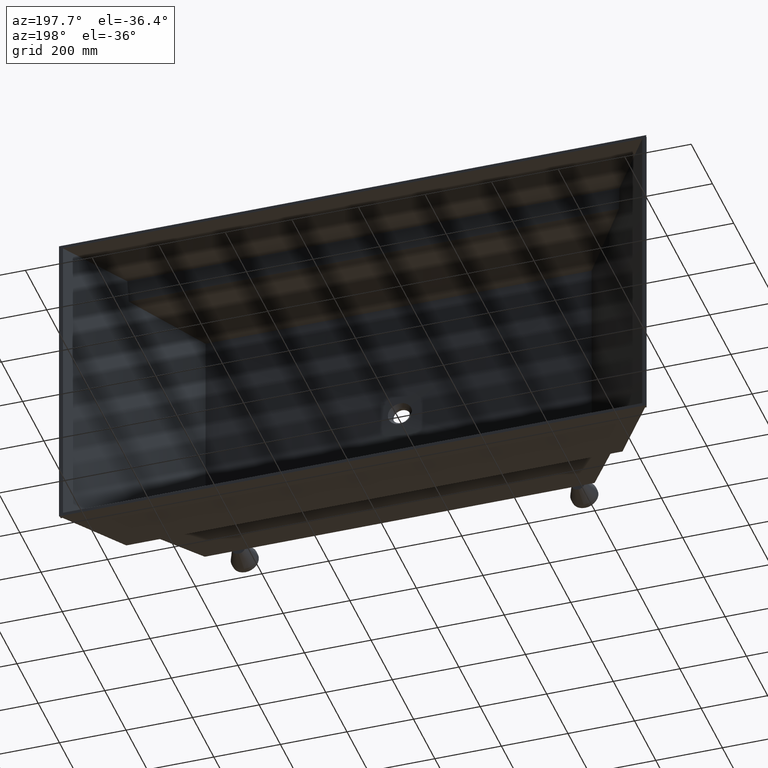
[diagram: clean part render]
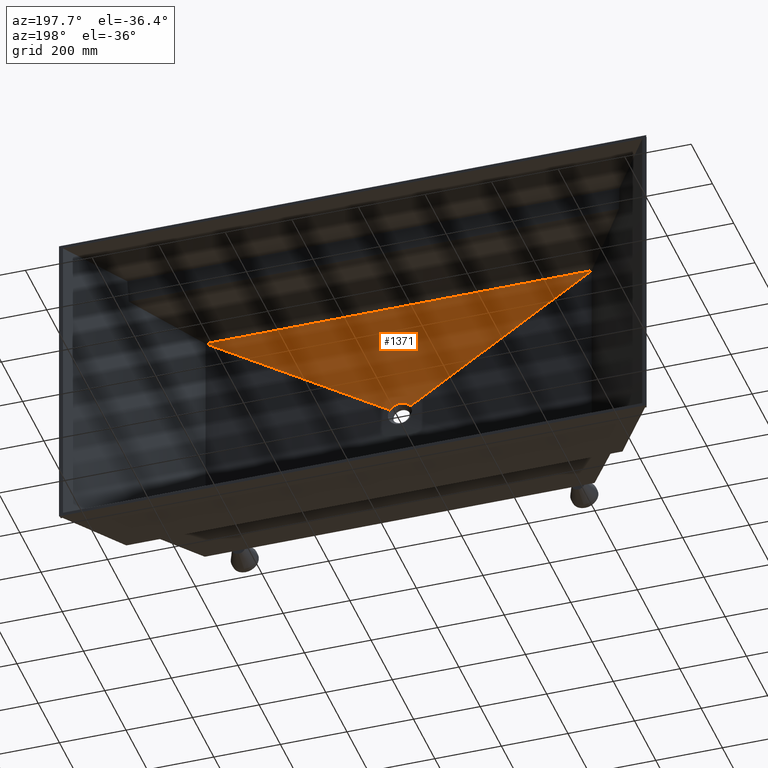
[diagram: same view with one face highlighted and labeled with its STEP entity id]
A machine part, auxiliary view. The second image highlights one B-rep face of the part: STEP entity #1371.
In plain terms, the highlighted face is a freeform B-spline surface patch.
Its self-contained STEP definition (entity closure, byte-faithful):
#33 = CARTESIAN_POINT ( 'NONE',  ( 6.652817067481202600, -444.6568898368007600, 35.51453088002421100 ) ) ;
#57 = CARTESIAN_POINT ( 'NONE',  ( 3.368652103122633500, -444.6499860862061800, 35.96865682231603500 ) ) ;
#90 = CARTESIAN_POINT ( 'NONE',  ( 1.707616907462160300, -444.6481687214573500, 36.08514314667780100 ) ) ;
#97 = CARTESIAN_POINT ( 'NONE',  ( 265.8333333333355300, -433.0000000000000600, 370.0000000000000000 ) ) ;
#169 = CARTESIAN_POINT ( 'NONE',  ( -498.0116696060077300, -432.6200604881802300, 381.1749425878642800 ) ) ;
#391 = CARTESIAN_POINT ( 'NONE',  ( 273.8603820835084500, -432.6200604881802900, 380.9888227316643000 ) ) ;
#445 = CARTESIAN_POINT ( 'NONE',  ( 8.276588221777309700, -444.6619689883626700, 35.17642082674614600 ) ) ;
#655 = CARTESIAN_POINT ( 'NONE',  ( -1.654412596268778600, -444.6481308521453600, 36.08759160419334200 ) ) ;
#660 = ORIENTED_EDGE ( 'NONE', *, *, #1390, .F. ) ;
#688 = CARTESIAN_POINT ( 'NONE',  ( -3.325003359853514300, -444.6499146266757000, 35.97330071050035400 ) ) ;
#764 = VECTOR ( 'NONE', #7022, 1000.000000000000100 ) ;
#774 = CARTESIAN_POINT ( 'NONE',  ( -5.398857553334576000, -444.6542489656664000, 35.68826071146957400 ) ) ;
#932 = CARTESIAN_POINT ( 'NONE',  ( 2.375571256383533800, -445.0000000000000000, 25.91822523027963100 ) ) ;
#938 = CARTESIAN_POINT ( 'NONE',  ( 120.8333333333361000, -433.0000000000000600, 370.0000000000000000 ) ) ;
#964 = CARTESIAN_POINT ( 'NONE',  ( 15.15837181452482000, -444.9999999999998900, 21.23925852102978600 ) ) ;
#1142 = CARTESIAN_POINT ( 'NONE',  ( 48.33333333333631300, -433.0000000000000000, 369.9999999999998900 ) ) ;
#1162 = CARTESIAN_POINT ( 'NONE',  ( 96.66666666666945700, -433.0000000000000600, 369.9999999999999400 ) ) ;
#1167 = CARTESIAN_POINT ( 'NONE',  ( 4.717986647780336700, -444.9999999999999400, 25.59567033451215300 ) ) ;
#1175 = CARTESIAN_POINT ( 'NONE',  ( 99.57791138324010700, -432.6200604881802900, 380.9044010734763200 ) ) ;
#1194 = EDGE_CURVE ( 'NONE', #8579, #8788, #6990, .T. ) ;
#1228 = CARTESIAN_POINT ( 'NONE',  ( 5.872548449445437400, -445.0000000000000600, 25.35493094219854300 ) ) ;
#1282 = CARTESIAN_POINT ( 'NONE',  ( -5.813082838003135000, -444.6552212375276000, 35.62399473677999900 ) ) ;
#1314 = CARTESIAN_POINT ( 'NONE',  ( -6.639840274992491400, -444.6573672547996200, 35.48118967822043900 ) ) ;
#1340 = CARTESIAN_POINT ( 'NONE',  ( -7.053010870240109800, -444.6585438190140300, 35.40246572580653600 ) ) ;
#1371 = ADVANCED_FACE ( 'NONE', ( #5836 ), #2443, .F. ) ;
#1390 = EDGE_CURVE ( 'NONE', #8579, #4532, #5361, .T. ) ;
#1441 = CARTESIAN_POINT ( 'NONE',  ( -199.1629904741964500, -432.6200604881802300, 380.9441272846977400 ) ) ;
#1444 = CARTESIAN_POINT ( 'NONE',  ( -8.283612428907750000, -444.6623489436677800, 35.14594405809139500 ) ) ;
#1453 = CARTESIAN_POINT ( 'NONE',  ( -8.118383112205009400, -445.0000000000000600, 24.72753938462551900 ) ) ;
#1460 = CARTESIAN_POINT ( 'NONE',  ( -169.1666666666638400, -433.0000000000000000, 369.9999999999998900 ) ) ;
#1470 = CARTESIAN_POINT ( 'NONE',  ( -174.2657171860881200, -432.6200604881802300, 380.9318875109175300 ) ) ;
#1482 = CARTESIAN_POINT ( 'NONE',  ( -5.872548449445443600, -445.0000000000000600, 25.35493094219854600 ) ) ;
#1491 = CARTESIAN_POINT ( 'NONE',  ( -120.8333333333304600, -432.9999999999999400, 369.9999999999998900 ) ) ;
#1494 = CARTESIAN_POINT ( 'NONE',  ( 386.6666666666681600, -433.0000000000000600, 370.0000000000000000 ) ) ;
#1504 = CARTESIAN_POINT ( 'NONE',  ( -587.7333333333333500, -433.0000000000000000, 369.9999999999997200 ) ) ;
#1520 = CARTESIAN_POINT ( 'NONE',  ( -22.07680635148490100, -445.0000000000000000, 13.73681324721162200 ) ) ;
#1523 = CARTESIAN_POINT ( 'NONE',  ( -21.99821490138278400, -445.0000000000000000, 13.86001065547981000 ) ) ;
#1529 = CARTESIAN_POINT ( 'NONE',  ( -605.6429387265953900, -432.6200604881802300, 381.2798717711834800 ) ) ;
#1539 = CARTESIAN_POINT ( 'NONE',  ( -601.6563354392187600, -432.6200604881802300, 381.2759711409206000 ) ) ;
#1548 = CARTESIAN_POINT ( 'NONE',  ( -583.8666666666666700, -433.0000000000000000, 369.9999999999997200 ) ) ;
#1563 = CARTESIAN_POINT ( 'NONE',  ( -21.91962345128066000, -445.0000000000000000, 13.98320806374799800 ) ) ;
#1575 = CARTESIAN_POINT ( 'NONE',  ( -597.6697321518422500, -432.6200604881802300, 381.2720705106577300 ) ) ;
#1581 = CARTESIAN_POINT ( 'NONE',  ( 174.2657171860937500, -432.6200604881802900, 380.9318875109176500 ) ) ;
#1590 = CARTESIAN_POINT ( 'NONE',  ( -580.0000000000000000, -433.0000000000000000, 369.9999999999997200 ) ) ;
#1604 = CARTESIAN_POINT ( 'NONE',  ( -4.717986647780338500, -444.9999999999999400, 25.59567033451215000 ) ) ;
#1612 = CARTESIAN_POINT ( 'NONE',  ( -124.4731787072637700, -432.6200604881801700, 380.9120232740755800 ) ) ;
#1615 = CARTESIAN_POINT ( 'NONE',  ( -96.66666666666378700, -432.9999999999999400, 369.9999999999998900 ) ) ;
#1641 = CARTESIAN_POINT ( 'NONE',  ( -2.375571256383537800, -445.0000000000000600, 25.91822523027962400 ) ) ;
#1648 = CARTESIAN_POINT ( 'NONE',  ( -99.57791138323426600, -432.6200604881801700, 380.9044010734762700 ) ) ;
#1651 = CARTESIAN_POINT ( 'NONE',  ( -49.78843080731729700, -432.6200604881801700, 380.8941884610068800 ) ) ;
#1660 = CARTESIAN_POINT ( 'NONE',  ( -48.33333333333031600, -432.9999999999999400, 369.9999999999998900 ) ) ;
#1681 = CARTESIAN_POINT ( 'NONE',  ( -1.187811578351947400, -445.0000000000001100, 25.99999999999999600 ) ) ;
#1693 = CARTESIAN_POINT ( 'NONE',  ( -24.16666666666351300, -433.0000000000000000, 369.9999999999998900 ) ) ;
#1710 = CARTESIAN_POINT ( 'NONE',  ( 11.30402670395046800, -445.0000000000000000, 23.44179540208820000 ) ) ;
#1720 = CARTESIAN_POINT ( 'NONE',  ( -24.89421458203268500, -432.6200604881802300, 380.8915993388329800 ) ) ;
#1747 = CARTESIAN_POINT ( 'NONE',  ( -193.3333333333306100, -433.0000000000000000, 369.9999999999998900 ) ) ;
#1881 = CARTESIAN_POINT ( 'NONE',  ( 870.0010999999998400, -432.9999999999999400, 369.9999999999999400 ) ) ;
#1889 = CARTESIAN_POINT ( 'NONE',  ( -22.15539780158701800, -445.0000000000000000, 13.61361583894343300 ) ) ;
#1925 = CARTESIAN_POINT ( 'NONE',  ( 8.118383112205005900, -445.0000000000000000, 24.72753938462551900 ) ) ;
#1932 = CARTESIAN_POINT ( 'NONE',  ( -591.6000000000000200, -433.0000000000000000, 369.9999999999997200 ) ) ;
#1958 = DIRECTION ( 'NONE',  ( -1.000000000000000000, 0.0000000000000000000, 0.0000000000000000000 ) ) ;
#1966 = CARTESIAN_POINT ( 'NONE',  ( 19.73312911012732200, -445.0000000000001100, 17.05089393811174500 ) ) ;
#1978 = CARTESIAN_POINT ( 'NONE',  ( -9.093395099397461900, -444.6652538559905000, 34.94779097156347100 ) ) ;
#1984 = CARTESIAN_POINT ( 'NONE',  ( 124.4731787072695700, -432.6200604881802900, 380.9120232740756900 ) ) ;
#1990 = CARTESIAN_POINT ( 'NONE',  ( 9.209588594781987300, -445.0000000000000600, 24.34095867692663600 ) ) ;
#2008 = CARTESIAN_POINT ( 'NONE',  ( 338.3333333333351300, -433.0000000000000600, 370.0000000000000000 ) ) ;
#2010 = CARTESIAN_POINT ( 'NONE',  ( -10.69324398437525800, -444.6717078446215500, 34.49820510063957400 ) ) ;
#2018 = CARTESIAN_POINT ( 'NONE',  ( 348.5655780926539900, -432.6200604881802900, 381.0423321549514000 ) ) ;
#2025 = CARTESIAN_POINT ( 'NONE',  ( 20.93723032500416200, -445.0000000000001100, 15.52317566710035900 ) ) ;
#2035 = CARTESIAN_POINT ( 'NONE',  ( 398.3758410502265400, -432.6200604881802900, 381.0844285334237600 ) ) ;
#2039 = CARTESIAN_POINT ( 'NONE',  ( -11.48313550750926400, -444.6752531822105000, 34.24682562755051400 ) ) ;
#2047 = CARTESIAN_POINT ( 'NONE',  ( -20.93723032500416500, -445.0000000000000600, 15.52317566710035200 ) ) ;
#2071 = CARTESIAN_POINT ( 'NONE',  ( -13.04318386769622200, -444.6828882398942800, 33.69135264020132300 ) ) ;
#2077 = CARTESIAN_POINT ( 'NONE',  ( 49.78843080732348600, -432.6200604881802300, 380.8941884610068800 ) ) ;
#2096 = CARTESIAN_POINT ( 'NONE',  ( 21.91962345128065300, -445.0000000000000000, 13.98320806374800700 ) ) ;
#2099 = CARTESIAN_POINT ( 'NONE',  ( -13.81331519681116800, -444.6869786606470100, 33.38726768569674200 ) ) ;
#2106 = CARTESIAN_POINT ( 'NONE',  ( 547.8371910596362100, -432.6200604881802900, 381.2233126323716900 ) ) ;
#2109 = CARTESIAN_POINT ( 'NONE',  ( 579.9999999999997700, -433.0000000000000000, 370.0000000000000000 ) ) ;
#2128 = CARTESIAN_POINT ( 'NONE',  ( -15.33372168753068700, -444.6956060908254900, 32.72614917613839900 ) ) ;
#2145 = CARTESIAN_POINT ( 'NONE',  ( 597.6697321518420300, -432.6200604881802300, 381.2720705106580100 ) ) ;
#2174 = CARTESIAN_POINT ( 'NONE',  ( 21.99821490138277400, -445.0000000000000000, 13.86001065547981900 ) ) ;
#2194 = CARTESIAN_POINT ( 'NONE',  ( 583.8666666666663300, -433.0000000000000000, 370.0000000000000000 ) ) ;
#2202 = CARTESIAN_POINT ( 'NONE',  ( 483.3333333333341100, -433.0000000000000600, 370.0000000000000000 ) ) ;
#2267 = CARTESIAN_POINT ( 'NONE',  ( 169.1666666666693000, -433.0000000000000600, 370.0000000000000000 ) ) ;
#2443 = B_SPLINE_SURFACE_WITH_KNOTS ( 'NONE', 3, 1, ( 
 ( #2528, #2504, #4370 ),
 ( #5883, #6212, #5882 ),
 ( #3014, #2194, #2174 ),
 ( #2145, #2109, #2096 ),
 ( #2106, #2607, #2025 ),
 ( #2973, #2202, #1966 ),
 ( #2035, #1494, #2927 ),
 ( #2018, #2008, #964 ),
 ( #391, #97, #4837 ),
 ( #4515, #4504, #1710 ),
 ( #4588, #4499, #1990 ),
 ( #1581, #2267, #1925 ),
 ( #1984, #938, #1228 ),
 ( #1175, #1162, #1167 ),
 ( #2077, #1142, #932 ),
 ( #4834, #4482, #4497 ),
 ( #1720, #1693, #1681 ),
 ( #1651, #1660, #1641 ),
 ( #1648, #1615, #1604 ),
 ( #1612, #1491, #1482 ),
 ( #1470, #1460, #1453 ),
 ( #1441, #1747, #4474 ),
 ( #4194, #4844, #4529 ),
 ( #4566, #6685, #7133 ),
 ( #7135, #7717, #7716 ),
 ( #4558, #5024, #6896 ),
 ( #169, #7098, #7617 ),
 ( #6732, #7533, #2047 ),
 ( #1575, #1590, #1563 ),
 ( #1539, #1548, #1523 ),
 ( #1529, #1504, #1520 ),
 ( #2944, #1932, #1889 ) ),
 .UNSPECIFIED., .F., .F., .F.,
 ( 4, 3, 2, 2, 2, 2, 2, 2, 2, 2, 2, 2, 2, 3, 4 ),
 ( 2, 1, 2 ),
 ( -0.01000000000000000000, 0.0000000000000000000, 0.1250000000000001400, 0.2500000000000002800, 0.3125000000000002800, 0.3750000000000002800, 0.4375000000000003300, 0.5000000000000000000, 0.5625000000000003300, 0.6250000000000002200, 0.6875000000000002200, 0.7500000000000001100, 0.8750000000000001100, 1.000000000000000000, 1.010000000000000000 ),
 ( -0.03166162598497989500, 0.0000000000000000000, 1.000000000000000000 ),
 .UNSPECIFIED. ) ;
#2504 = CARTESIAN_POINT ( 'NONE',  ( 591.5999999999994500, -433.0000000000000000, 370.0000000000000000 ) ) ;
#2528 = CARTESIAN_POINT ( 'NONE',  ( 609.6295420139713300, -432.6200604881802300, 381.2837724014467500 ) ) ;
#2607 = CARTESIAN_POINT ( 'NONE',  ( 531.6666666666669700, -433.0000000000000600, 370.0000000000000000 ) ) ;
#2629 = ORIENTED_EDGE ( 'NONE', *, *, #4174, .F. ) ;
#2711 = CARTESIAN_POINT ( 'NONE',  ( -16.08446976648793800, -444.7001437619654200, 32.36882557164849300 ) ) ;
#2792 = CARTESIAN_POINT ( 'NONE',  ( -17.56395504457970700, -444.7095537184847600, 31.60132167888241000 ) ) ;
#2927 = CARTESIAN_POINT ( 'NONE',  ( 16.84439698559920700, -445.0000000000001700, 19.90968756051249900 ) ) ;
#2944 = CARTESIAN_POINT ( 'NONE',  ( -609.6295420139719000, -432.6200604881802300, 381.2837724014464100 ) ) ;
#2973 = CARTESIAN_POINT ( 'NONE',  ( 498.0116696060095500, -432.6200604881802900, 381.1749425878645100 ) ) ;
#3014 = CARTESIAN_POINT ( 'NONE',  ( 601.6563354392185400, -432.6200604881802300, 381.2759711409209400 ) ) ;
#3334 = CARTESIAN_POINT ( 'NONE',  ( -18.29724196709460300, -444.7144589694116200, 31.18827790345513800 ) ) ;
#3362 = CARTESIAN_POINT ( 'NONE',  ( -19.72472713761857900, -444.7243956913786700, 30.31768815167062300 ) ) ;
#3399 = CARTESIAN_POINT ( 'NONE',  ( -20.41960482034243900, -444.7294250647774400, 29.86026038908032400 ) ) ;
#3835 = CARTESIAN_POINT ( 'NONE',  ( -580.0000000000000000, -432.9999999999999400, 369.9999999999997200 ) ) ;
#3941 = B_SPLINE_CURVE_WITH_KNOTS ( 'NONE', 3,
 ( #8322, #6861, #6746, #6200, #6138, #5455, #4721, #4697, #4670, #4114, #4076, #4048, #4023, #3989, #3954, #3399, #3362, #3334, #2792, #2711, #2128, #2099, #2071, #2039, #2010, #1978, #1444, #1340, #1314, #1282, #774, #688, #655, #90, #57, #33, #445, #4294, #9019, #8997, #8970, #8942, #8912, #8877, #8780, #8739, #8722, #8647, #8622, #8588, #8556, #8527, #8498, #8461, #8439, #8408, #8380, #8350, #8315, #8289, #8255, #8153, #8052, #8024 ),
 .UNSPECIFIED., .F., .F.,
 ( 4, 2, 2, 2, 2, 2, 2, 2, 2, 2, 2, 2, 2, 2, 2, 2, 2, 2, 2, 2, 2, 2, 2, 2, 2, 2, 2, 2, 2, 2, 2, 4 ),
 ( 0.0000000000000000000, 0.0008316591266720315900, 0.01804421162017105100, 0.05246931660716908800, 0.08689442159416731200, 0.1213195265811655400, 0.1557446315681635700, 0.1901697365551616200, 0.2245948415421596700, 0.2590199465291577200, 0.2934450515161557400, 0.3278701565031537600, 0.3622952614901517900, 0.3967203664771498700, 0.4139329189706488800, 0.4311454714641478900, 0.4999956814381439400, 0.5688458914121400400, 0.6376961013861360800, 0.6721212063731341100, 0.7065463113601322400, 0.7409714163471302600, 0.7753965213341286200, 0.8098216263211270900, 0.8270341788146260400, 0.8442467313081251100, 0.8786718362951231300, 0.9130969412821211600, 0.9475220462691191800, 0.9819471512561172000, 0.9991597037496162700, 1.000000000000000000 ),
 .UNSPECIFIED. ) ;
#3954 = CARTESIAN_POINT ( 'NONE',  ( -21.77324539386367200, -444.7395214900523100, 28.90131402588051700 ) ) ;
#3989 = CARTESIAN_POINT ( 'NONE',  ( -22.43187815188106900, -444.7445888167544600, 28.39991419490017300 ) ) ;
#4023 = CARTESIAN_POINT ( 'NONE',  ( -23.71308704945845500, -444.7546880085642400, 27.35350970714823800 ) ) ;
#4048 = CARTESIAN_POINT ( 'NONE',  ( -24.33565844476134600, -444.7597198405259700, 26.80850879946991600 ) ) ;
#4076 = CARTESIAN_POINT ( 'NONE',  ( -25.54451683594855600, -444.7696856959200300, 25.67454727933262900 ) ) ;
#4114 = CARTESIAN_POINT ( 'NONE',  ( -26.13107177885844800, -444.7746190377669100, 25.08523383882915800 ) ) ;
#4174 = EDGE_CURVE ( 'NONE', #4532, #4985, #6172, .T. ) ;
#4194 = CARTESIAN_POINT ( 'NONE',  ( -248.9603224140761300, -432.6200604881802300, 380.9725962560050300 ) ) ;
#4294 = CARTESIAN_POINT ( 'NONE',  ( 10.68158640143748400, -444.6716557571069200, 34.50193063272701000 ) ) ;
#4370 = CARTESIAN_POINT ( 'NONE',  ( 22.15539780158700700, -445.0000000000000000, 13.61361583894344200 ) ) ;
#4474 = CARTESIAN_POINT ( 'NONE',  ( -9.209588594781990900, -445.0000000000000000, 24.34095867692664300 ) ) ;
#4482 = CARTESIAN_POINT ( 'NONE',  ( 24.16666666666980100, -433.0000000000000000, 369.9999999999998900 ) ) ;
#4497 = CARTESIAN_POINT ( 'NONE',  ( 1.187811578351943600, -445.0000000000000600, 26.00000000000000400 ) ) ;
#4499 = CARTESIAN_POINT ( 'NONE',  ( 193.3333333333358700, -433.0000000000000600, 370.0000000000000000 ) ) ;
#4504 = CARTESIAN_POINT ( 'NONE',  ( 241.6666666666689900, -433.0000000000000600, 370.0000000000000000 ) ) ;
#4515 = CARTESIAN_POINT ( 'NONE',  ( 248.9603224140811600, -432.6200604881802900, 380.9725962560052000 ) ) ;
#4529 = CARTESIAN_POINT ( 'NONE',  ( -11.30402670395047300, -445.0000000000000600, 23.44179540208818600 ) ) ;
#4532 = VERTEX_POINT ( 'NONE', #3835 ) ;
#4558 = CARTESIAN_POINT ( 'NONE',  ( -398.3758410502231900, -432.6200604881802300, 381.0844285334235300 ) ) ;
#4566 = CARTESIAN_POINT ( 'NONE',  ( -273.8603820835035700, -432.6200604881802300, 380.9888227316641900 ) ) ;
#4588 = CARTESIAN_POINT ( 'NONE',  ( 199.1629904742018800, -432.6200604881802900, 380.9441272846978600 ) ) ;
#4670 = CARTESIAN_POINT ( 'NONE',  ( -27.26608572528645900, -444.7843303746846600, 23.86307807630943500 ) ) ;
#4697 = CARTESIAN_POINT ( 'NONE',  ( -27.81749891613998600, -444.7891361485525300, 23.22630334450130400 ) ) ;
#4721 = CARTESIAN_POINT ( 'NONE',  ( -28.86583292881406100, -444.7984280615963300, 21.92678747920218600 ) ) ;
#4834 = CARTESIAN_POINT ( 'NONE',  ( 24.89421458203917600, -432.6200604881802300, 380.8915993388329800 ) ) ;
#4837 = CARTESIAN_POINT ( 'NONE',  ( 12.30722718891641200, -444.9999999999999400, 22.92929880236258100 ) ) ;
#4844 = CARTESIAN_POINT ( 'NONE',  ( -241.6666666666641000, -433.0000000000000000, 369.9999999999998300 ) ) ;
#4985 = VERTEX_POINT ( 'NONE', #8808 ) ;
#5024 = CARTESIAN_POINT ( 'NONE',  ( -386.6666666666648700, -433.0000000000000000, 369.9999999999997700 ) ) ;
#5361 = LINE ( 'NONE', #1881, #5926 ) ;
#5455 = CARTESIAN_POINT ( 'NONE',  ( -29.36563383506490900, -444.8029268777166900, 21.26125236666512200 ) ) ;
#5627 = CARTESIAN_POINT ( 'NONE',  ( 300.9598117256401800, -439.0000000000000000, 191.9916040318740300 ) ) ;
#5836 = FACE_OUTER_BOUND ( 'NONE', #8061, .T. ) ;
#5882 = CARTESIAN_POINT ( 'NONE',  ( 22.07680635148489000, -445.0000000000000000, 13.73681324721163000 ) ) ;
#5883 = CARTESIAN_POINT ( 'NONE',  ( 605.6429387265949300, -432.6200604881802300, 381.2798717711838200 ) ) ;
#5926 = VECTOR ( 'NONE', #1958, 1000.000000000000000 ) ;
#6040 = VECTOR ( 'NONE', #6899, 1000.000000000000000 ) ;
#6138 = CARTESIAN_POINT ( 'NONE',  ( -30.07789602996861700, -444.8094924536912900, 20.24157566127683300 ) ) ;
#6159 = ORIENTED_EDGE ( 'NONE', *, *, #7478, .F. ) ;
#6172 = LINE ( 'NONE', #8467, #764 ) ;
#6200 = CARTESIAN_POINT ( 'NONE',  ( -30.30903954007223800, -444.8116365766662700, 19.89821466273317400 ) ) ;
#6212 = CARTESIAN_POINT ( 'NONE',  ( 587.7333333333328900, -433.0000000000000000, 370.0000000000000000 ) ) ;
#6363 = ORIENTED_EDGE ( 'NONE', *, *, #1194, .T. ) ;
#6685 = CARTESIAN_POINT ( 'NONE',  ( -265.8333333333308100, -433.0000000000000000, 369.9999999999998900 ) ) ;
#6732 = CARTESIAN_POINT ( 'NONE',  ( -547.8371910596353000, -432.6200604881802300, 381.2233126323714600 ) ) ;
#6746 = CARTESIAN_POINT ( 'NONE',  ( -30.54554142490159000, -444.8138506041867700, 19.53348998034375200 ) ) ;
#6861 = CARTESIAN_POINT ( 'NONE',  ( -30.55642978557906600, -444.8139527931580200, 19.51666755102229100 ) ) ;
#6896 = CARTESIAN_POINT ( 'NONE',  ( -16.84439698559921400, -445.0000000000001100, 19.90968756051250600 ) ) ;
#6899 = DIRECTION ( 'NONE',  ( -0.8429239527360894400, -0.01812478606645660800, -0.5377273491592297100 ) ) ;
#6990 = LINE ( 'NONE', #5627, #6040 ) ;
#7022 = DIRECTION ( 'NONE',  ( 0.8429239527360896700, -0.01812478606645660400, -0.5377273491592291500 ) ) ;
#7098 = CARTESIAN_POINT ( 'NONE',  ( -483.3333333333323500, -433.0000000000000000, 369.9999999999997700 ) ) ;
#7133 = CARTESIAN_POINT ( 'NONE',  ( -12.30722718891641400, -444.9999999999998300, 22.92929880236256700 ) ) ;
#7135 = CARTESIAN_POINT ( 'NONE',  ( -348.5655780926499600, -432.6200604881802300, 381.0423321549512300 ) ) ;
#7478 = EDGE_CURVE ( 'NONE', #4985, #8788, #3941, .T. ) ;
#7533 = CARTESIAN_POINT ( 'NONE',  ( -531.6666666666660600, -433.0000000000000000, 369.9999999999997700 ) ) ;
#7617 = CARTESIAN_POINT ( 'NONE',  ( -19.73312911012732200, -445.0000000000000600, 17.05089393811174100 ) ) ;
#7716 = CARTESIAN_POINT ( 'NONE',  ( -15.15837181452482900, -444.9999999999998300, 21.23925852102979000 ) ) ;
#7717 = CARTESIAN_POINT ( 'NONE',  ( -338.3333333333312100, -433.0000000000000000, 369.9999999999997700 ) ) ;
#8024 = CARTESIAN_POINT ( 'NONE',  ( 30.56732867123416900, -444.8140501690294900, 19.49984760681373100 ) ) ;
#8030 = CARTESIAN_POINT ( 'NONE',  ( 30.56732867123416900, -444.8140501690294900, 19.49984760681373100 ) ) ;
#8052 = CARTESIAN_POINT ( 'NONE',  ( 30.55617798120705000, -444.8139503244627800, 19.51705787870367500 ) ) ;
#8061 = EDGE_LOOP ( 'NONE', ( #2629, #660, #6363, #6159 ) ) ;
#8153 = CARTESIAN_POINT ( 'NONE',  ( 30.54504114397244800, -444.8138458544175400, 19.53426324709443300 ) ) ;
#8255 = CARTESIAN_POINT ( 'NONE',  ( 30.30561970365075200, -444.8116056273491400, 19.90345176287444700 ) ) ;
#8256 = CARTESIAN_POINT ( 'NONE',  ( 579.9999999999997700, -433.0000000000000000, 370.0000000000000000 ) ) ;
#8289 = CARTESIAN_POINT ( 'NONE',  ( 30.07249274060334100, -444.8094363957004000, 20.24954849845931500 ) ) ;
#8315 = CARTESIAN_POINT ( 'NONE',  ( 29.35597335210425000, -444.8028508594385400, 21.27459740644783900 ) ) ;
#8322 = CARTESIAN_POINT ( 'NONE',  ( -30.56730596582646000, -444.8140551276470700, 19.49983311536442800 ) ) ;
#8350 = CARTESIAN_POINT ( 'NONE',  ( 28.85673697698918600, -444.7983467618174100, 21.93844352344195800 ) ) ;
#8380 = CARTESIAN_POINT ( 'NONE',  ( 27.81594470547898400, -444.7891230585078100, 23.22784457936839800 ) ) ;
#8408 = CARTESIAN_POINT ( 'NONE',  ( 27.27439026938752100, -444.7844028810354200, 23.85339948514529200 ) ) ;
#8439 = CARTESIAN_POINT ( 'NONE',  ( 26.14915764330456200, -444.7747723782900400, 25.06647720394249400 ) ) ;
#8461 = CARTESIAN_POINT ( 'NONE',  ( 25.56550039200848400, -444.7698609772393200, 25.65396676849032800 ) ) ;
#8467 = CARTESIAN_POINT ( 'NONE',  ( -300.9598117256402900, -439.0000000000000000, 191.9916040318738300 ) ) ;
#8498 = CARTESIAN_POINT ( 'NONE',  ( 24.35559703435058400, -444.7598819775597000, 26.79067278554646200 ) ) ;
#8527 = CARTESIAN_POINT ( 'NONE',  ( 23.72966244020994300, -444.7548199459169500, 27.33960667152003800 ) ) ;
#8556 = CARTESIAN_POINT ( 'NONE',  ( 22.75715436001538800, -444.7471521940676100, 28.13442986612529900 ) ) ;
#8579 = VERTEX_POINT ( 'NONE', #8256 ) ;
#8588 = CARTESIAN_POINT ( 'NONE',  ( 22.42735601505846400, -444.7445841427598900, 28.39453583251082600 ) ) ;
#8622 = CARTESIAN_POINT ( 'NONE',  ( 21.76196185490049500, -444.7394749886279300, 28.90088251746840000 ) ) ;
#8647 = CARTESIAN_POINT ( 'NONE',  ( 21.42545748851402400, -444.7369266188876500, 29.14788441656429200 ) ) ;
#8722 = CARTESIAN_POINT ( 'NONE',  ( 20.40637097542671800, -444.7293280264823400, 29.86924607132899100 ) ) ;
#8739 = CARTESIAN_POINT ( 'NONE',  ( 19.71276831266853000, -444.7243111894130700, 30.32518788476282600 ) ) ;
#8780 = CARTESIAN_POINT ( 'NONE',  ( 18.29853465384490700, -444.7144692405659600, 31.18728131911833800 ) ) ;
#8788 = VERTEX_POINT ( 'NONE', #8030 ) ;
#8808 = CARTESIAN_POINT ( 'NONE',  ( -30.56730596582646000, -444.8140551276470700, 19.49983311536442800 ) ) ;
#8877 = CARTESIAN_POINT ( 'NONE',  ( 17.57773730689938700, -444.7096458387631500, 31.59356347858107500 ) ) ;
#8912 = CARTESIAN_POINT ( 'NONE',  ( 16.10881827223001000, -444.7002942923285800, 32.35678602865610300 ) ) ;
#8942 = CARTESIAN_POINT ( 'NONE',  ( 15.36071979219211900, -444.6957655560112200, 32.71371475979551500 ) ) ;
#8970 = CARTESIAN_POINT ( 'NONE',  ( 13.83678329224252000, -444.6871057505720200, 33.37773525535109800 ) ) ;
#8997 = CARTESIAN_POINT ( 'NONE',  ( 13.06161000606180500, -444.6829806830197600, 33.68458614228847400 ) ) ;
#9019 = CARTESIAN_POINT ( 'NONE',  ( 11.48014117444588700, -444.6752362870329300, 34.24809550354389400 ) ) ;